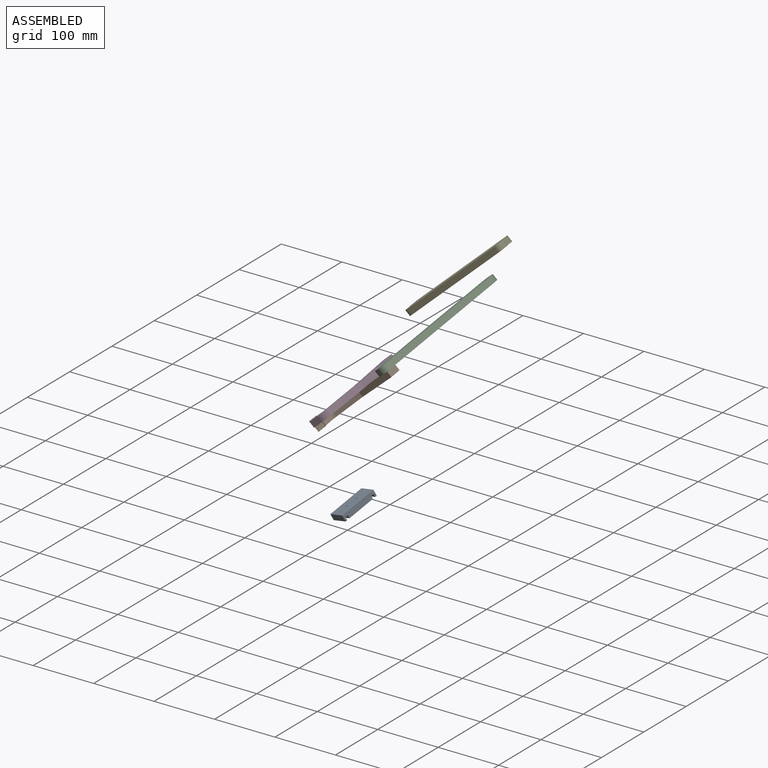
[diagram: assembled view]
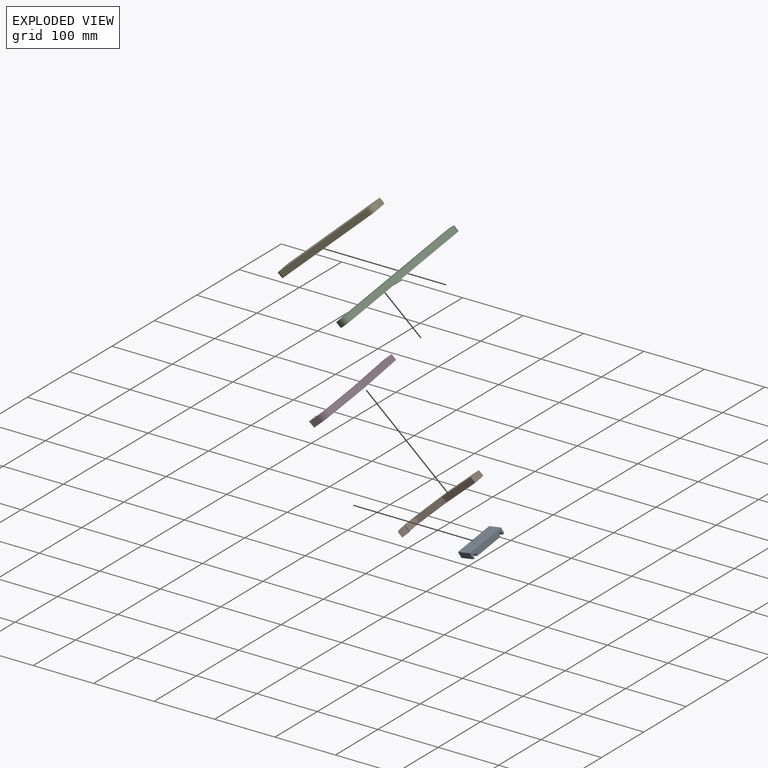
[diagram: exploded view]
GUIDED TOUR — MATED ASSEMBLY (Onshape document f6f7db515bf379d0a23ad7cc, AutoMate assembly f6f7db515bf379d0a23ad7cc_baac1d596e36070bb8ef373e_0fc07581b9da99dc3abf7116_default)

This assembly has 5 components, labeled P0..P4 below (a component is one placed occurrence of a part; the same part can appear more than once), held together by 2 mates. A mate is a constraint between two components; its type names the relative motion it leaves free:
  REVOLUTE — leaves rotation about the listed axis free (a hinge).
Axis/direction vectors are unit vectors and 'through' points are millimeter coordinates, both in the assembly's world frame.

MATES
  1. REVOLUTE "Revolute 1": P1 <-> P3, axis (-0.672, -0.123, 0.730) through (122.02, -276.40, 95.73) mm
  2. REVOLUTE "Revolute 2": P1 <-> P2, axis (-0.672, -0.123, 0.730) through (161.23, -288.19, 129.83) mm

ASSEMBLY ORDER
  1. P3 — the base component [order verified]
  2. P2 [order verified]
  3. P1 [order verified]
  4. P4 [order verified]
  5. P0 [order verified]
Order-tag legend:
  [order verified] — this step's position reverses a verified removal order: the component was checked to insert without passing through the ones already placed.

Of the 5 components, 2 carry the full construction recipe — the FeatureScript program that regenerates the part's solid from scratch; the rest are supplied as boundary geometry only.
Each toured component is shown spotlighted twice — in the assembled view, then in the exploded view, where a leader line traces a displaced component back to its assembled socket (saturated green if recipe-attached, orange if geometry-only; every other component desaturated gray) — followed by its recipe or geometry summary and the mates that hold it.
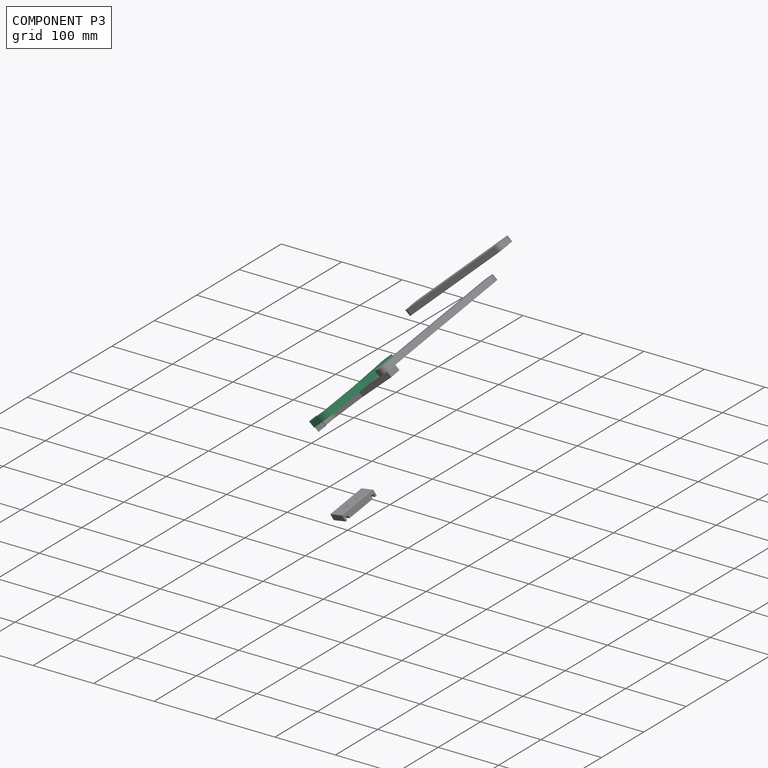
[diagram: component P3 — assembled]
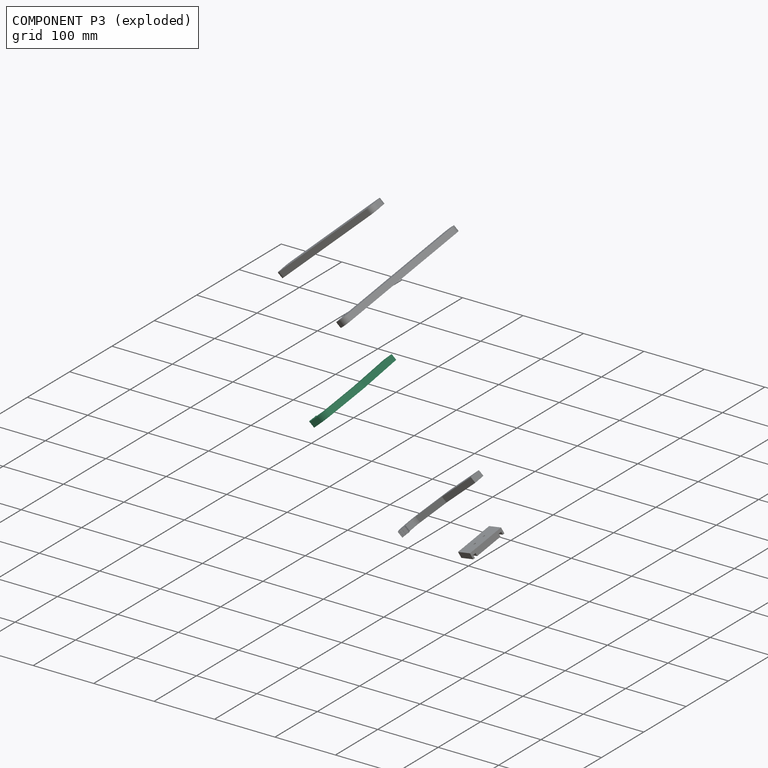
[diagram: component P3 — exploded]
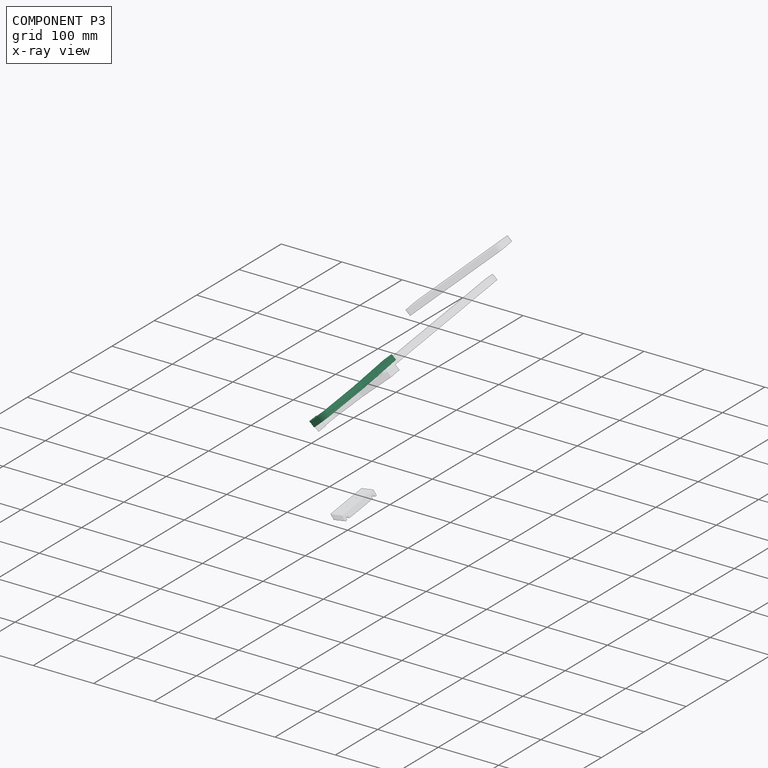
[diagram: component P3 — x-ray view]
COMPONENT P3 — same part as P1 (CADFS 00543956); its construction recipe is shown at P1.
Held by: REVOLUTE mate "Revolute 1" to P1.
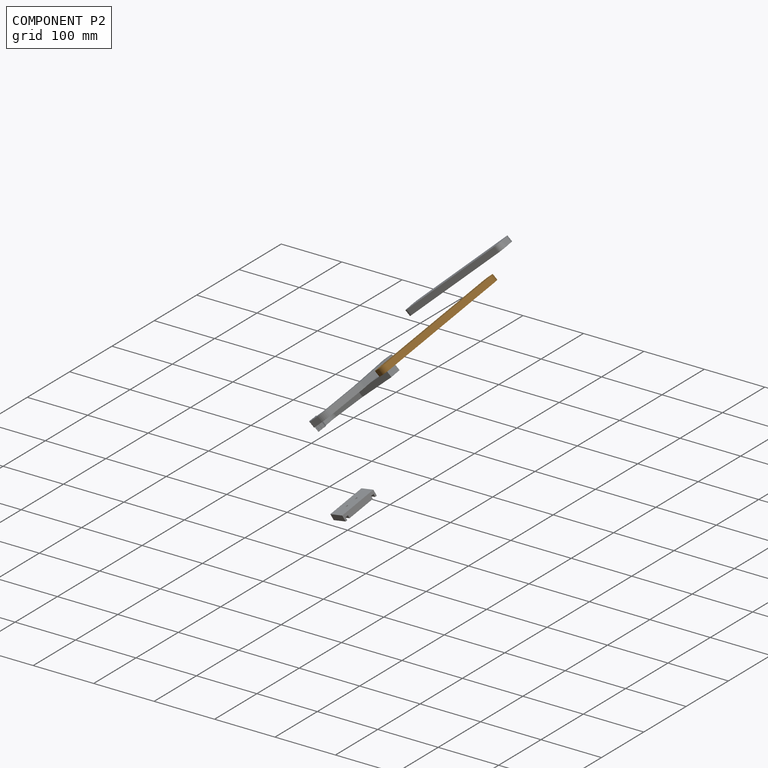
[diagram: component P2 — assembled]
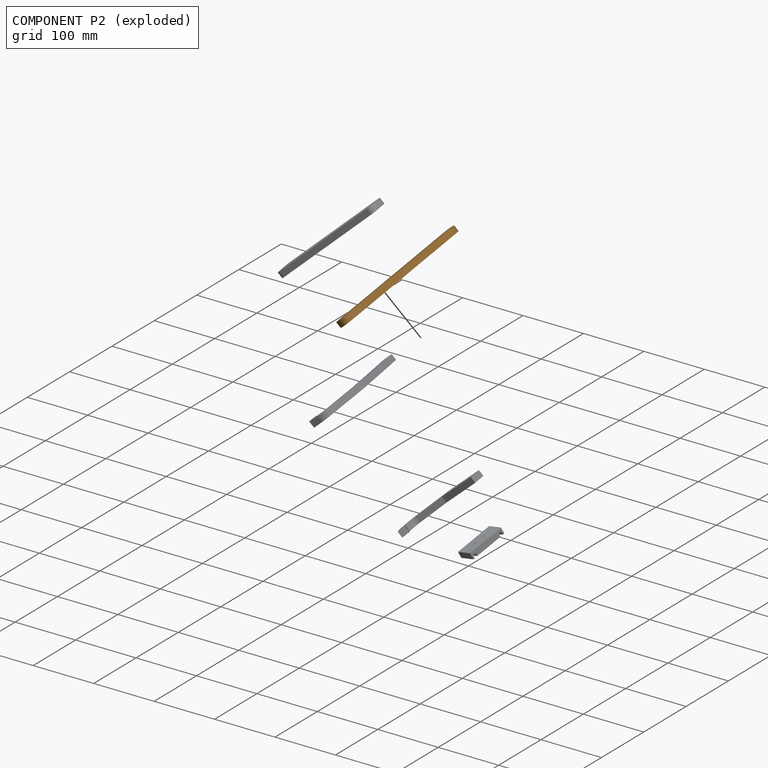
[diagram: component P2 — exploded]
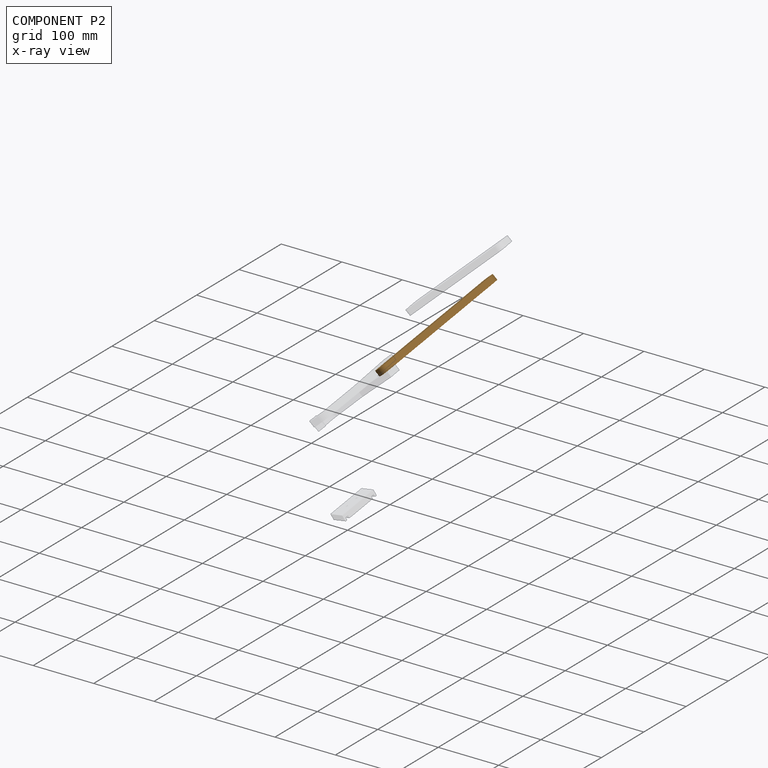
[diagram: component P2 — x-ray view]
COMPONENT P2 — geometry summary (no construction recipe available for this part):
  bounding box: 220.0 x 30.0 x 10.0 mm
  B-rep topology: 1 solid, 12 faces, 60 edges
  volume: 64938 mm^3 (98% of its bounding box)
  symmetry: 2-fold rotationally symmetric about the x axis; mirror-symmetric across its y mid-plane, z mid-plane
Held by: REVOLUTE mate "Revolute 2" to P1.
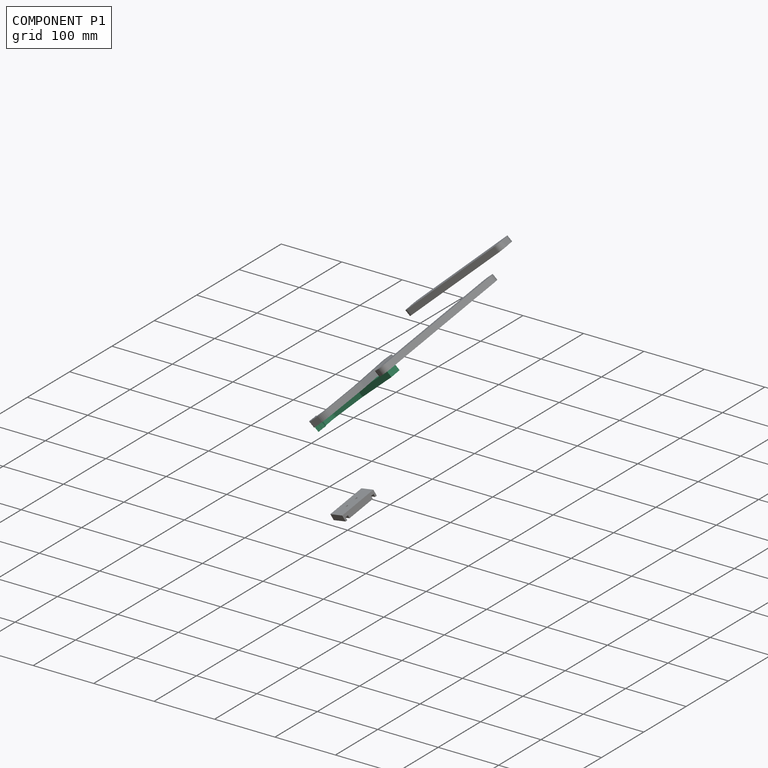
[diagram: component P1 — assembled]
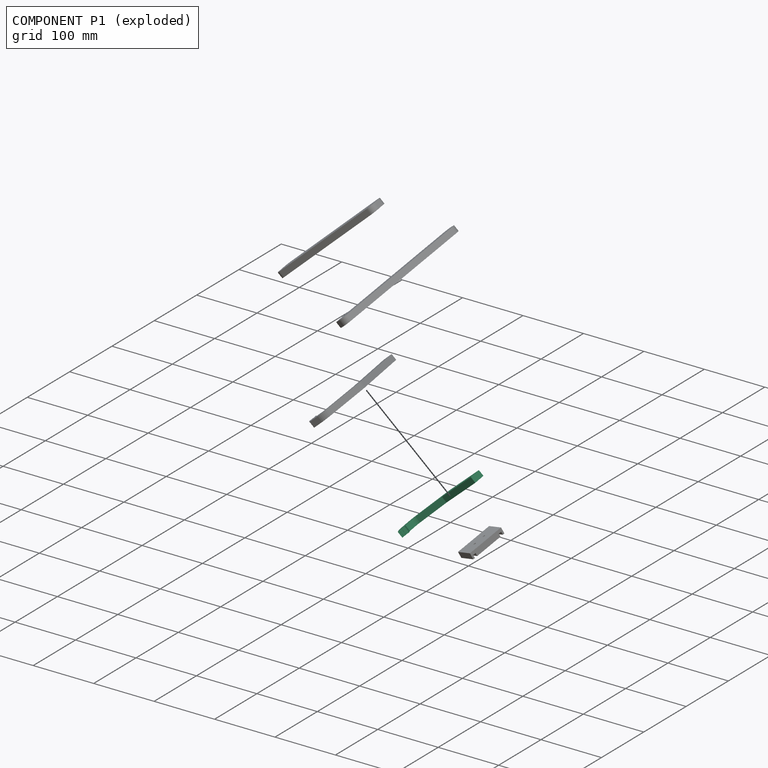
[diagram: component P1 — exploded]
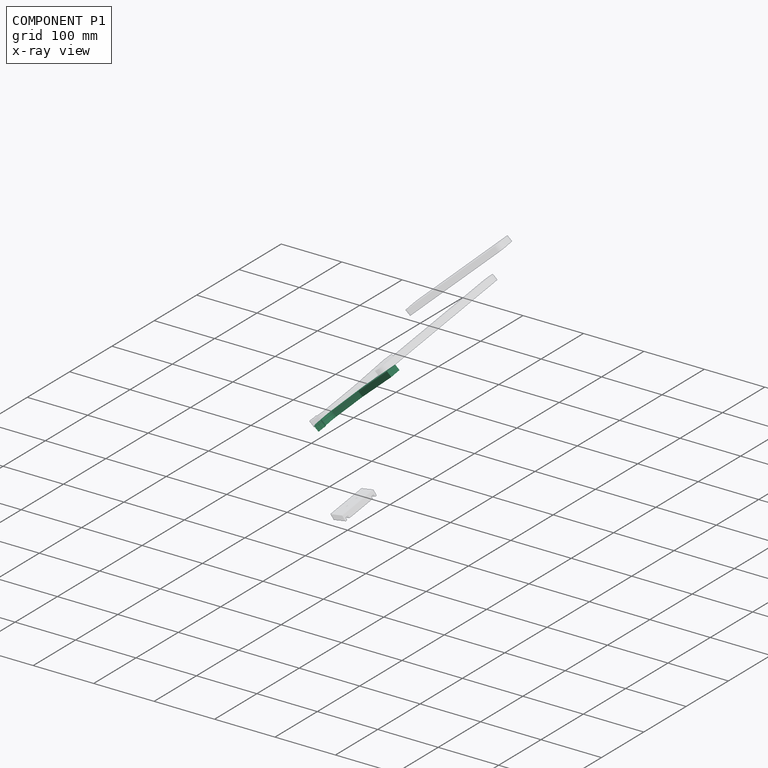
[diagram: component P1 — x-ray view]
COMPONENT P1 — recipe-attached (CADFS 00543956, mesh-verified: the recipe's output STEP matches this component's geometry to below the mesh-comparison resolution (tessellation chordal tolerance ~0.248 mm)).
Held by: REVOLUTE mate "Revolute 1" to P3; REVOLUTE mate "Revolute 2" to P2.
Construction recipe (FeatureScript — the CAD program that rebuilds this solid; sketch coordinates are in the units given by the * unit suffixes, e.g. mm):

FeatureScript 1511;
import(path : "onshape/std/geometry.fs", version : "1511.0");
import(path : "onshape/std/common.fs", version : "1511.0");
const mm = millimeter;
const VERTEX = EntityType.VERTEX;
const EDGE = EntityType.EDGE;
const FACE = EntityType.FACE;
const BODY = EntityType.BODY;
function v(x, y){return vector(x, y);}
function OD(order){return orderDisambiguation(order);}
function OSD(set){return originalSetDisambiguation(set);}
function TD(topology){return topologyDisambiguation(topology);}
function TDD(query){return trueDependencyDisambiguation(query);}
function sQuery(a, b, c) {return sketchEntityQuery(a, b, c);}

annotation { "Feature Type Name" : "Feature", "Feature Type Description" : "" }
export const myFeature = defineFeature(function(context is Context, id is Id, definition is map)
    precondition{}
    {
        {
            var Q0;
            Q0=qCreatedBy(makeId("Front.planeOp"),FACE);
            var sketch = newSketch(context, id + "F0", { "sketchPlane" : qUnion([Q0])});
            skLineSegment(sketch, "E0.bottom", {"start": v(-20.45, -3.8) * mm, "end": v(53.55, -3.8) * mm});
            skLineSegment(sketch, "E0.top", {"start": v(-20.45, -21.8) * mm, "end": v(53.55, -21.8) * mm});
            skLineSegment(sketch, "E0.right", {"start": v(53.55, -3.8) * mm, "end": v(53.55, -21.8) * mm});
            skLineSegment(sketch, "E1", {"start": v(97.78, 19.54) * mm, "end": v(106.62, 6.2) * mm});
            skArc(sketch, "E2", {"start": v(106.62, 6.2) * mm, "mid": v(113.83, 12.66) * mm, "end": v(117.17, 21.75) * mm});
            skArc(sketch, "E3", {"start": v(97.78, 19.54) * mm, "mid": v(100.14, 21.77) * mm, "end": v(101.96, 24.47) * mm});
            skLineSegment(sketch, "E4", {"start": v(117.17, 21.75) * mm, "end": v(115.64, 41.69) * mm});
            skLineSegment(sketch, "E5", {"start": v(101.96, 24.47) * mm, "end": v(100.81, 39.42) * mm});
            skLineSegment(sketch, "E6", {"start": v(100.81, 39.42) * mm, "end": v(115.64, 41.69) * mm});
            skLineSegment(sketch, "E7", {"start": v(115.64, 41.69) * mm, "end": v(101.3, 55.63) * mm});
            skLineSegment(sketch, "E8", {"start": v(100.81, 39.42) * mm, "end": v(93.64, 46.4) * mm});
            skLineSegment(sketch, "E9", {"start": v(93.64, 46.4) * mm, "end": v(101.3, 55.63) * mm});
            skLineSegment(sketch, "E10", {"start": v(97.45, 58.82) * mm, "end": v(101.3, 55.63) * mm});
            skLineSegment(sketch, "E11", {"start": v(99.7, 53.7) * mm, "end": v(95.86, 56.9) * mm});
            skLineSegment(sketch, "E12", {"start": v(95.86, 56.9) * mm, "end": v(97.45, 58.82) * mm});
            skLineSegment(sketch, "E13", {"start": v(93.64, 46.4) * mm, "end": v(89.8, 49.59) * mm});
            skLineSegment(sketch, "E14", {"start": v(89.8, 49.59) * mm, "end": v(91.4, 51.51) * mm});
            skLineSegment(sketch, "E15", {"start": v(91.4, 51.51) * mm, "end": v(95.24, 48.32) * mm});
            skLineSegment(sketch, "E16", {"start": v(94.9, 55.74) * mm, "end": v(98.74, 52.55) * mm});
            skLineSegment(sketch, "E17", {"start": v(98.74, 52.55) * mm, "end": v(97.15, 50.62) * mm});
            skLineSegment(sketch, "E18", {"start": v(97.15, 50.62) * mm, "end": v(93.3, 53.81) * mm});
            skLineSegment(sketch, "E19", {"start": v(93.3, 53.81) * mm, "end": v(94.9, 55.74) * mm});
            skPoint(sketch, "E20.orphan", {"position": v(13.55, -3.8) * mm});
            skPoint(sketch, "E21.orphan", {"position": v(13.55, -21.8) * mm});
            skPoint(sketch, "E22.visualSharp", {"position": v(-26.45, -3.8) * mm});
            skPoint(sketch, "E23.visualSharp", {"position": v(-26.45, -21.8) * mm});
            skLineSegment(sketch, "E24", {"start": v(-20.45, -3.8) * mm, "end": v(-26.45, -3.8) * mm});
            skLineSegment(sketch, "E25", {"start": v(-20.45, -21.8) * mm, "end": v(-26.45, -21.8) * mm});
            skLineSegment(sketch, "E26", {"start": v(-26.45, -3.8) * mm, "end": v(-26.45, -21.8) * mm});
            skArc(sketch, "E27", {"start": v(53.55, -21.8) * mm, "mid": v(58.63, -21.02) * mm, "end": v(63.24, -18.77) * mm});
            skLineSegment(sketch, "E28", {"start": v(63.24, -18.77) * mm, "end": v(106.62, 6.2) * mm});
            skLineSegment(sketch, "E29", {"start": v(53.55, -3.8) * mm, "end": v(97.78, 19.54) * mm});
            skSolve(sketch);
        }
        {
            var Q0;
            Q0 = qSketchRegion(id + "F0", true);
            extrude(context, id + "F1", {"entities" : qUnion([Q0]), "endBound" : BoundingType.SYMMETRIC, "depth" : 10 * mm, "offsetDistance" : 25 * mm});
        }
        {
            var Q0;
            Q0=makeQuery(id+"F1.opExtrude","CAP_FACE",FACE,{"disambiguationData":[OSD([sQuery(id+"F0.wireOp",EDGE,"E0.bottom"),sQuery(id+"F0.wireOp",EDGE,"E0.top"),sQuery(id+"F0.wireOp",EDGE,"E0.left"),sQuery(id+"F0.wireOp",EDGE,"dFlx3WSS-NuXs-38vh-BP1l-hkDyl14ZQ1RU"),sQuery(id+"F0.wireOp",EDGE,"eLWkrCNr-kwx3-V4A0-YC1O-Lrd44Gapqwvy"),sQuery(id+"F0.wireOp",EDGE,"E2"),sQuery(id+"F0.wireOp",EDGE,"E3"),sQuery(id+"F0.wireOp",EDGE,"E4"),sQuery(id+"F0.wireOp",EDGE,"E5"),sQuery(id+"F0.wireOp",EDGE,"E7"),sQuery(id+"F0.wireOp",EDGE,"E8"),sQuery(id+"F0.wireOp",EDGE,"E9"),sQuery(id+"F0.wireOp",EDGE,"E10"),sQuery(id+"F0.wireOp",EDGE,"E11"),sQuery(id+"F0.wireOp",EDGE,"E12"),sQuery(id+"F0.wireOp",EDGE,"E13"),sQuery(id+"F0.wireOp",EDGE,"E14"),sQuery(id+"F0.wireOp",EDGE,"E15"),sQuery(id+"F0.wireOp",EDGE,"E16"),sQuery(id+"F0.wireOp",EDGE,"E18"),sQuery(id+"F0.wireOp",EDGE,"E19"),sQuery(id+"F0.wireOp",EDGE,"E22.filletArc"),sQuery(id+"F0.wireOp",EDGE,"E23.filletArc")])],"isStart":false});
            var sketch = newSketch(context, id + "F2", { "sketchPlane" : qUnion([Q0])});
            skCircle(sketch, "E30", {"center": v(30.5, -13.68) * mm, "radius": 1.45 * mm});
            skSolve(sketch);
        }
        {
            var Q0;
            Q0 = qSketchRegion(id + "F2", true);
            extrude(context, id + "F3", {"entities" : qUnion([Q0]), "operationType" : NewBodyOperationType.REMOVE, "oppositeDirection" : true, "depth" : 26 * mm, "offsetDistance" : 25 * mm});
        }
        {
            var Q0;
            Q0=makeQuery(id+"F1.opExtrude","CAP_FACE",FACE,{"disambiguationData":[OSD([sQuery(id+"F0.wireOp",EDGE,"E0.bottom"),sQuery(id+"F0.wireOp",EDGE,"E0.top"),sQuery(id+"F0.wireOp",EDGE,"E0.left"),sQuery(id+"F0.wireOp",EDGE,"dFlx3WSS-NuXs-38vh-BP1l-hkDyl14ZQ1RU"),sQuery(id+"F0.wireOp",EDGE,"eLWkrCNr-kwx3-V4A0-YC1O-Lrd44Gapqwvy"),sQuery(id+"F0.wireOp",EDGE,"E2"),sQuery(id+"F0.wireOp",EDGE,"E3"),sQuery(id+"F0.wireOp",EDGE,"E4"),sQuery(id+"F0.wireOp",EDGE,"E5"),sQuery(id+"F0.wireOp",EDGE,"E7"),sQuery(id+"F0.wireOp",EDGE,"E8"),sQuery(id+"F0.wireOp",EDGE,"E9"),sQuery(id+"F0.wireOp",EDGE,"E10"),sQuery(id+"F0.wireOp",EDGE,"E11"),sQuery(id+"F0.wireOp",EDGE,"E12"),sQuery(id+"F0.wireOp",EDGE,"E13"),sQuery(id+"F0.wireOp",EDGE,"E14"),sQuery(id+"F0.wireOp",EDGE,"E15"),sQuery(id+"F0.wireOp",EDGE,"E16"),sQuery(id+"F0.wireOp",EDGE,"E18"),sQuery(id+"F0.wireOp",EDGE,"E19"),sQuery(id+"F0.wireOp",EDGE,"E22.filletArc"),sQuery(id+"F0.wireOp",EDGE,"E23.filletArc")])],"isStart":false});
            var sketch = newSketch(context, id + "F4", { "sketchPlane" : qUnion([Q0])});
            skSolve(sketch);
        }
        {
            var Q0;
            Q0=makeQuery(id+"F4.imprint","IMPRINT",FACE,{"disambiguationData":[TD([[makeQuery(id+"F4.imprint","IMPRINT",EDGE,{"derivedFrom":makeQuery(id+"F1.opExtrude","CAP_EDGE",EDGE,{"disambiguationData":[OSD([sQuery(id+"F0.wireOp",EDGE,"E2")])],"isStart":false})}),1.0]])]});
            var sketch = newSketch(context, id + "F5", { "sketchPlane" : qUnion([Q0])});
            skCircle(sketch, "E31", {"center": v(-22.78, -12.65) * mm, "radius": 1.8 * mm});
            skSolve(sketch);
        }
        {
            var Q0;
            Q0 = qSketchRegion(id + "F5", true);
            extrude(context, id + "F6", {"entities" : qUnion([Q0]), "operationType" : NewBodyOperationType.REMOVE, "oppositeDirection" : true, "depth" : 25 * mm, "offsetDistance" : 25 * mm});
        }
    });
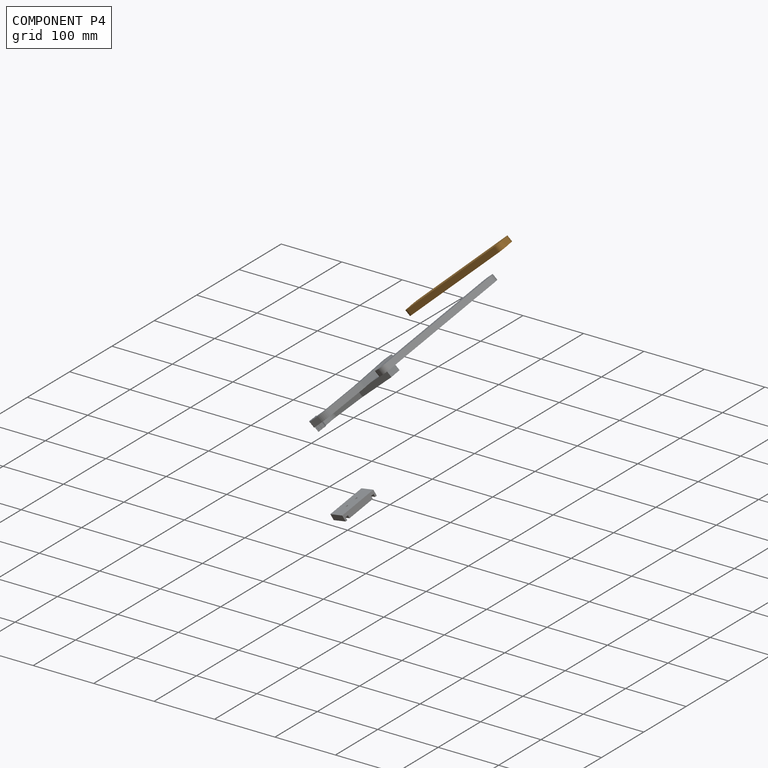
[diagram: component P4 — assembled]
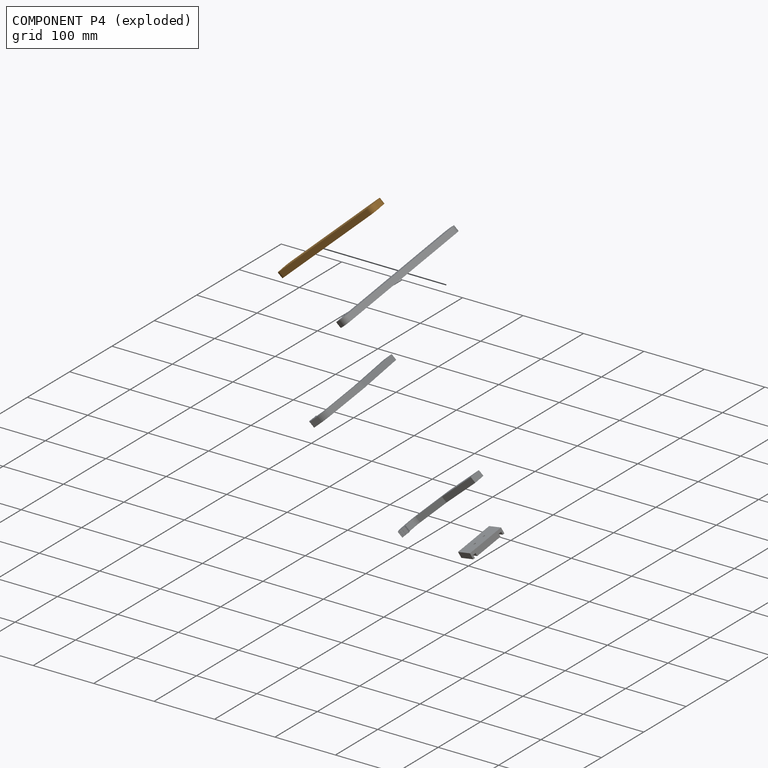
[diagram: component P4 — exploded]
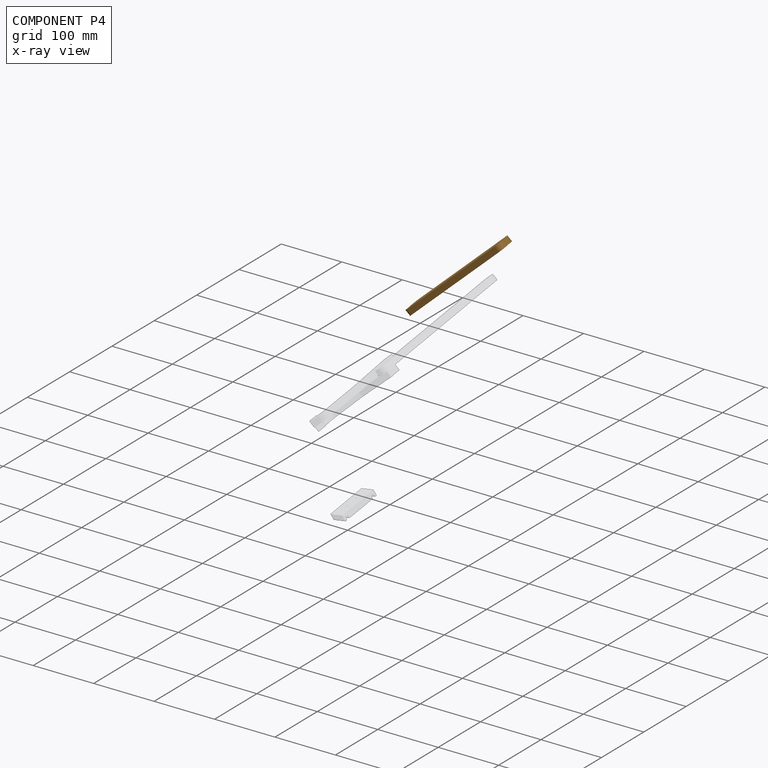
[diagram: component P4 — x-ray view]
COMPONENT P4 — geometry summary (no construction recipe available for this part):
  bounding box: 220.0 x 30.0 x 10.0 mm
  B-rep topology: 1 solid, 12 faces, 60 edges
  volume: 64938 mm^3 (98% of its bounding box)
  symmetry: 2-fold rotationally symmetric about the x axis; mirror-symmetric across its y mid-plane, z mid-plane
Held by: no mates (free).
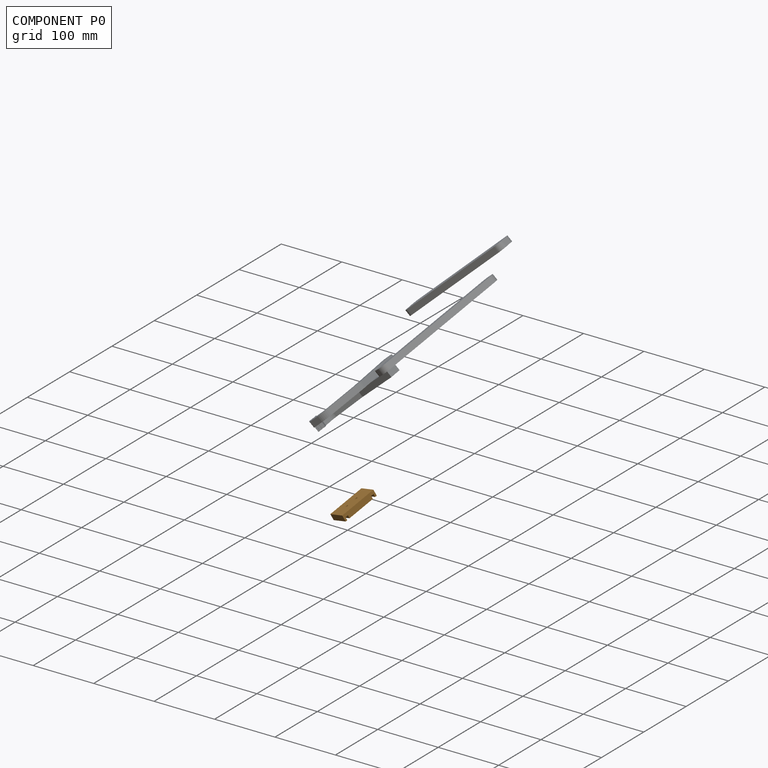
[diagram: component P0 — assembled]
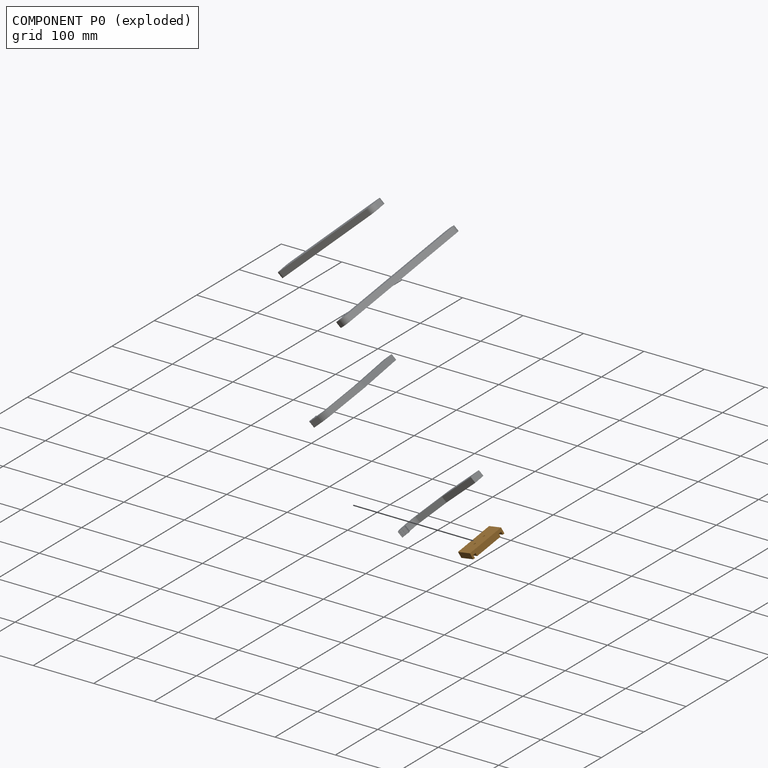
[diagram: component P0 — exploded]
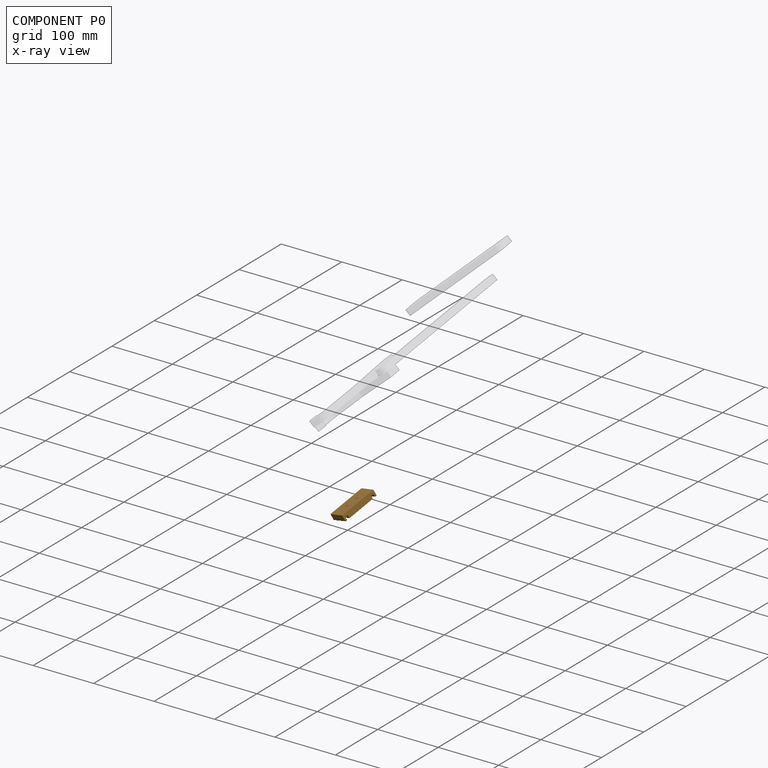
[diagram: component P0 — x-ray view]
COMPONENT P0 — geometry summary (no construction recipe available for this part):
  bounding box: 60.0 x 30.0 x 10.0 mm
  B-rep topology: 1 solid, 16 faces, 84 edges
  volume: 16416 mm^3 (91% of its bounding box)
  symmetry: mirror-symmetric across its y mid-plane
Held by: no mates (free).
PROVENANCE & LICENSES
Assembly (occurrences, transforms, mates, per-part STEP geometry): AutoMate dataset, Zenodo record 7776208, CC0.
Construction recipes: CADFS (HuggingFace VladPyatov/CADFS, CC-BY-4.0, layered over the ABC dataset), FeatureScript reconstruction programs keyed by ABC model id.
Join: ABC meta listings map ABC model id -> Onshape documentId; within a shared document, parts are matched by geometric signature (bounding-box dims + volume at 0.1% relative tolerance, exact B-rep face/solid counts).
Verification: 2 of this assembly's 5 components carry a recipe attachment, and every attachment is mesh-verified: the CADFS STEP and the AutoMate member STEP were compared as meshes in their shared local frame (symmetric sampled-point-to-mesh distance); worst across the 2 attachments: below the mesh-comparison resolution (tessellation chordal tolerance ~0.248 mm) on a 165 mm part.
Renders: orthographic iso camera (az 35 / el 25); the floor grid conveys scale (grid pitch printed in each image; no ruler). In the exploded view each component is displaced by its stored offset vector: the offsets alone carry the explosion direction (mate normal/axis signs are not orientation cues and do not encode it), and separation distances are assigned per mate-chain, not proportionally to assembly-order depth.
